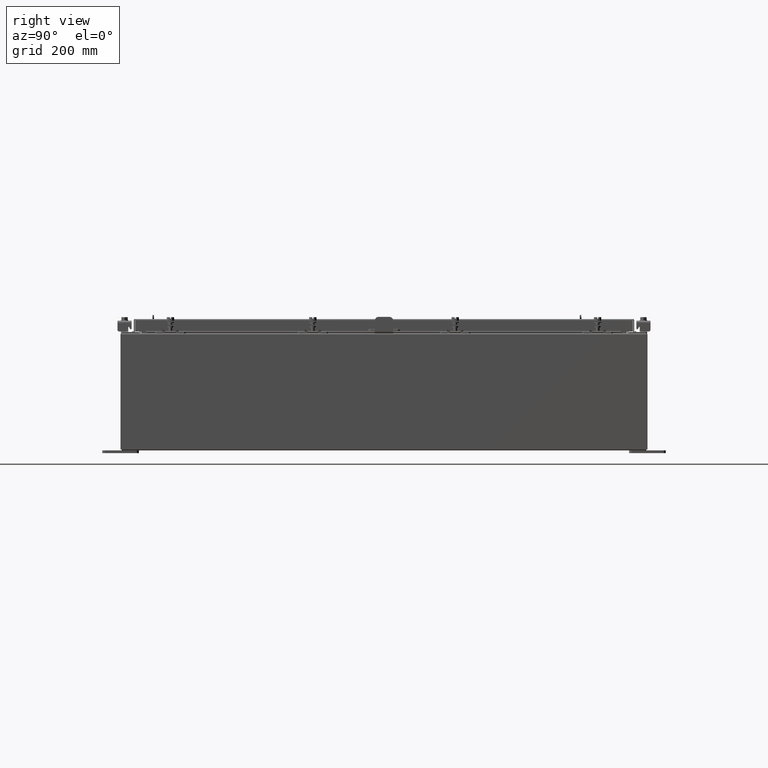
[diagram: clean part render]
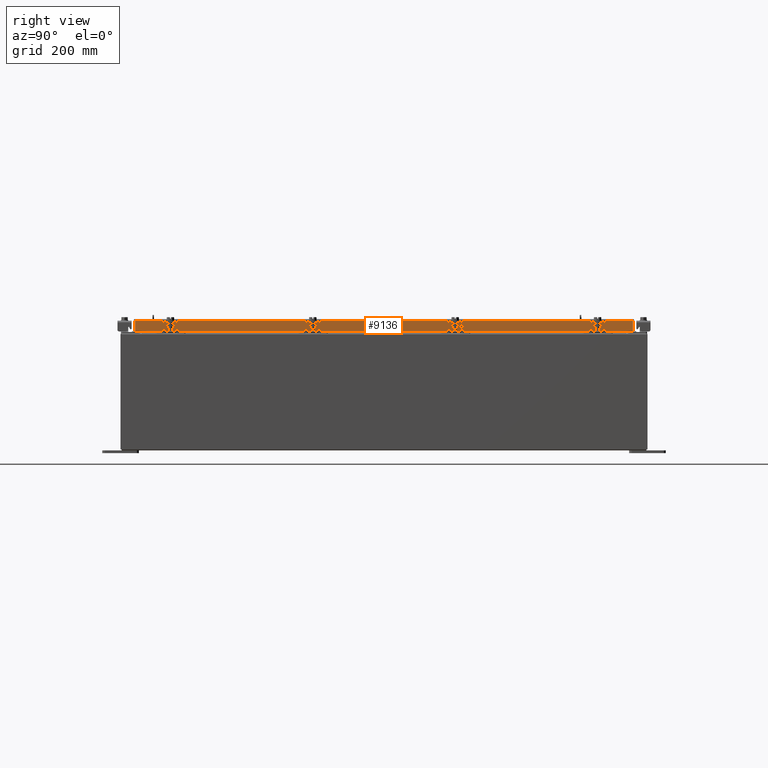
[diagram: same view with one face highlighted and labeled with its STEP entity id]
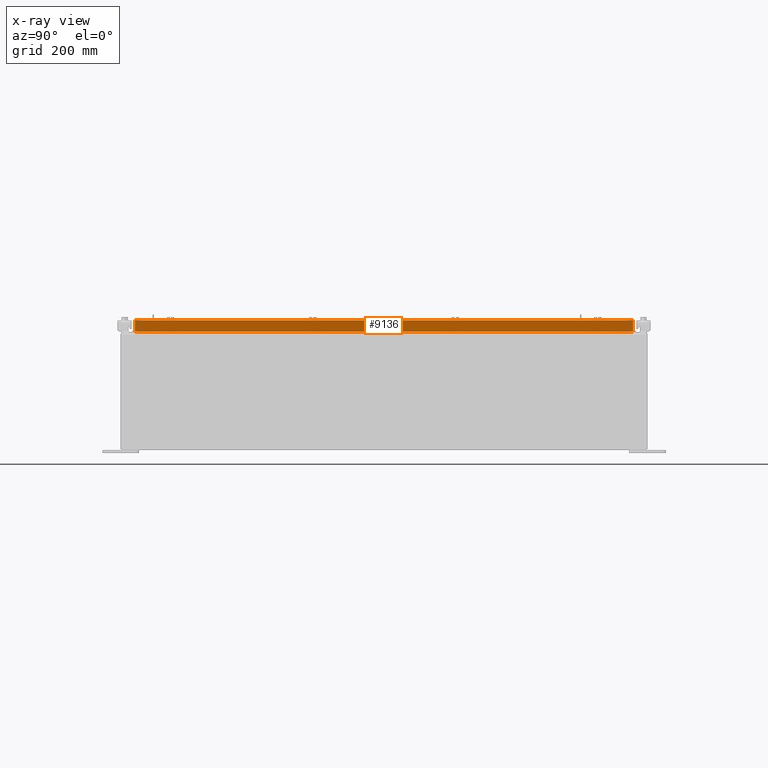
[diagram: x-ray of the same camera — body ghosted, the highlighted face saturated]
A machine part, right view. The second image highlights one B-rep face of the part: STEP entity #9136.
The next image is the same camera in x-ray: the body ghosted, the highlighted face saturated — about 0% of this face is hidden behind the body in this view.
In plain terms, the highlighted planar face has unit normal (1, 0, 0).
Its self-contained STEP definition (entity closure, byte-faithful):
#477 = EDGE_CURVE ( 'NONE', #13323, #16442, #12118, .T. ) ;
#694 = DIRECTION ( 'NONE',  ( -2.818880942772360500E-015, -6.982962677686269100E-015, 1.000000000000000000 ) ) ;
#863 = VERTEX_POINT ( 'NONE', #3130 ) ;
#1026 = VECTOR ( 'NONE', #21470, 39.37007874015748100 ) ;
#1887 = CARTESIAN_POINT ( 'NONE',  ( 14.07799999999999800, -17.00515786437627200, -0.08770000000000026400 ) ) ;
#2211 = ORIENTED_EDGE ( 'NONE', *, *, #23302, .F. ) ;
#2734 = CARTESIAN_POINT ( 'NONE',  ( 14.07799999999999600, 16.25515786437626900, -0.8499999999999999800 ) ) ;
#3130 = CARTESIAN_POINT ( 'NONE',  ( 14.07799999999999800, 17.00515786437626200, -0.08770000000000026400 ) ) ;
#3537 = ORIENTED_EDGE ( 'NONE', *, *, #10271, .F. ) ;
#4728 = VECTOR ( 'NONE', #694, 39.37007874015748100 ) ;
#4994 = VECTOR ( 'NONE', #12748, 39.37007874015748100 ) ;
#5061 = CARTESIAN_POINT ( 'NONE',  ( 14.07799999999999800, 0.0000000000000000000, 4.043135030623109600E-014 ) ) ;
#5305 = AXIS2_PLACEMENT_3D ( 'NONE', #5061, #22068, #10735 ) ;
#6197 = LINE ( 'NONE', #10386, #21273 ) ;
#7888 = CARTESIAN_POINT ( 'NONE',  ( 14.07799999999999900, 17.00515786437627200, -0.8499999999999999800 ) ) ;
#7926 = VERTEX_POINT ( 'NONE', #1887 ) ;
#9032 = CARTESIAN_POINT ( 'NONE',  ( 14.07799999999999900, -17.00515786437626900, -0.8499999999999999800 ) ) ;
#9136 = ADVANCED_FACE ( 'NONE', ( #13039 ), #14493, .T. ) ;
#10271 = EDGE_CURVE ( 'NONE', #23092, #13323, #6197, .T. ) ;
#10274 = ORIENTED_EDGE ( 'NONE', *, *, #12518, .T. ) ;
#10386 = CARTESIAN_POINT ( 'NONE',  ( 14.07799999999999900, -17.09400000000000100, -0.8499999999999999800 ) ) ;
#10735 = DIRECTION ( 'NONE',  ( 2.818880942772360100E-015, 0.0000000000000000000, -1.000000000000000000 ) ) ;
#11273 = LINE ( 'NONE', #12159, #20748 ) ;
#11526 = VECTOR ( 'NONE', #21227, 39.37007874015748100 ) ;
#11828 = ORIENTED_EDGE ( 'NONE', *, *, #23981, .T. ) ;
#12017 = CARTESIAN_POINT ( 'NONE',  ( 14.07799999999999800, 17.00515786437626500, 1.584471836325272600E-013 ) ) ;
#12118 = LINE ( 'NONE', #19348, #11526 ) ;
#12159 = CARTESIAN_POINT ( 'NONE',  ( 14.07799999999999800, -17.00515786437627200, -0.07470000000000015500 ) ) ;
#12239 = ORIENTED_EDGE ( 'NONE', *, *, #12758, .F. ) ;
#12518 = EDGE_CURVE ( 'NONE', #23092, #863, #14185, .T. ) ;
#12748 = DIRECTION ( 'NONE',  ( 0.0000000000000000000, -1.000000000000000000, 0.0000000000000000000 ) ) ;
#12758 = EDGE_CURVE ( 'NONE', #16442, #23539, #20077, .T. ) ;
#13039 = FACE_OUTER_BOUND ( 'NONE', #13304, .T. ) ;
#13304 = EDGE_LOOP ( 'NONE', ( #2211, #12239, #13973, #3537, #10274, #11828 ) ) ;
#13323 = VERTEX_POINT ( 'NONE', #2734 ) ;
#13973 = ORIENTED_EDGE ( 'NONE', *, *, #477, .F. ) ;
#14185 = LINE ( 'NONE', #12017, #4728 ) ;
#14493 = PLANE ( 'NONE',  #5305 ) ;
#15817 = CARTESIAN_POINT ( 'NONE',  ( 14.07799999999999800, 0.0000000000000000000, -0.08770000000000026400 ) ) ;
#16442 = VERTEX_POINT ( 'NONE', #21234 ) ;
#18397 = CARTESIAN_POINT ( 'NONE',  ( 14.07799999999999900, -17.09400000000000100, -0.8499999999999999800 ) ) ;
#19348 = CARTESIAN_POINT ( 'NONE',  ( 14.07799999999999600, 16.25515786437627200, -0.8499999999999999800 ) ) ;
#20077 = LINE ( 'NONE', #18397, #4994 ) ;
#20748 = VECTOR ( 'NONE', #23558, 39.37007874015748100 ) ;
#21147 = LINE ( 'NONE', #15817, #1026 ) ;
#21227 = DIRECTION ( 'NONE',  ( 0.0000000000000000000, -1.000000000000000000, 0.0000000000000000000 ) ) ;
#21234 = CARTESIAN_POINT ( 'NONE',  ( 14.07799999999999600, -16.25515786437626900, -0.8499999999999999800 ) ) ;
#21273 = VECTOR ( 'NONE', #23602, 39.37007874015748100 ) ;
#21470 = DIRECTION ( 'NONE',  ( 0.0000000000000000000, -1.000000000000000000, 0.0000000000000000000 ) ) ;
#22068 = DIRECTION ( 'NONE',  ( 1.000000000000000000, 0.0000000000000000000, 2.818880942772360100E-015 ) ) ;
#23092 = VERTEX_POINT ( 'NONE', #7888 ) ;
#23302 = EDGE_CURVE ( 'NONE', #23539, #7926, #11273, .T. ) ;
#23539 = VERTEX_POINT ( 'NONE', #9032 ) ;
#23558 = DIRECTION ( 'NONE',  ( -2.818880942772360500E-015, -6.982962677686269100E-015, 1.000000000000000000 ) ) ;
#23602 = DIRECTION ( 'NONE',  ( 0.0000000000000000000, -1.000000000000000000, 0.0000000000000000000 ) ) ;
#23981 = EDGE_CURVE ( 'NONE', #863, #7926, #21147, .T. ) ;